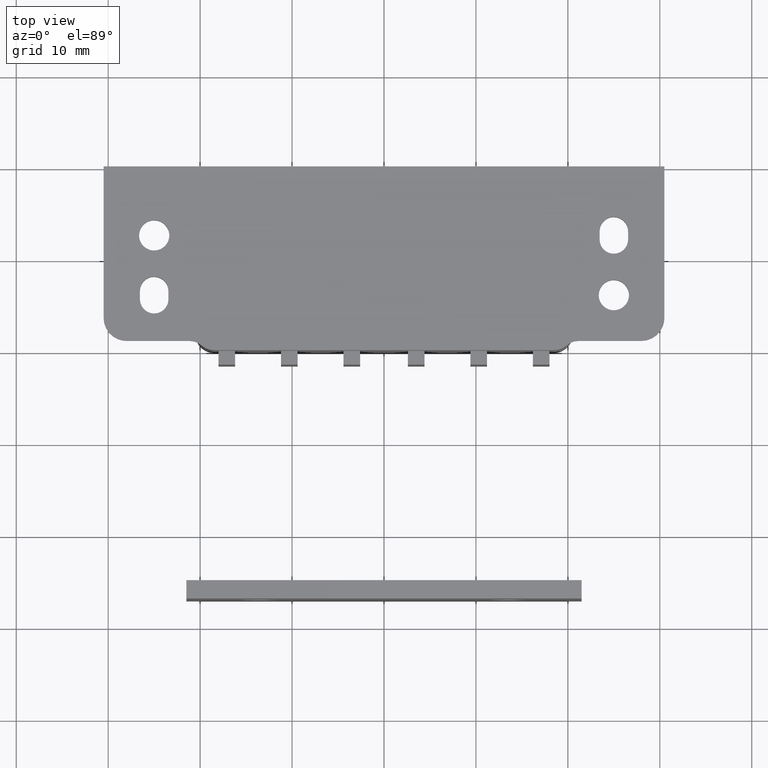
[diagram: clean part render]
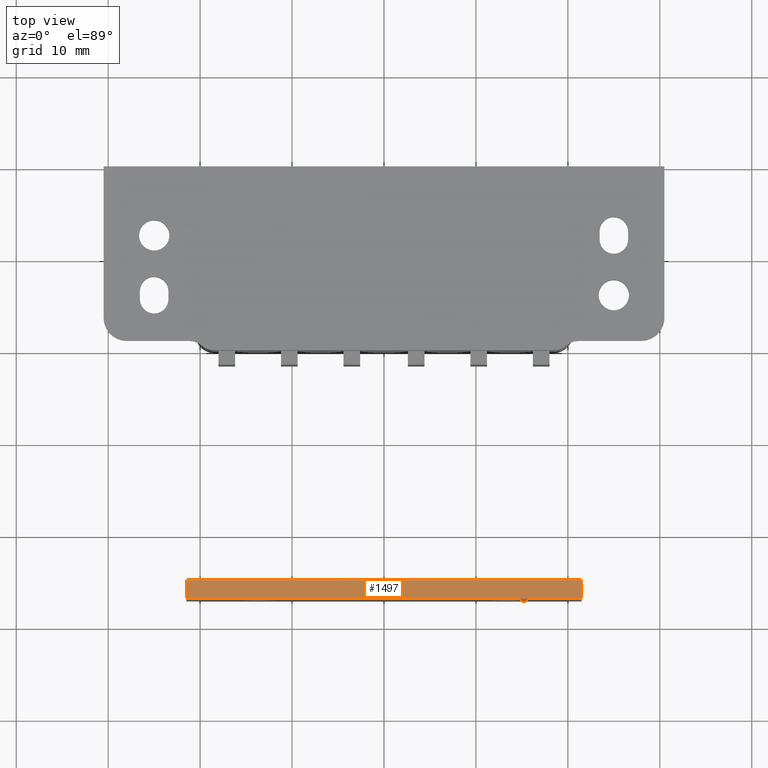
[diagram: same view with one face highlighted and labeled with its STEP entity id]
A machine part, top view. The second image highlights one B-rep face of the part: STEP entity #1497.
In plain terms, the highlighted face is a freeform B-spline surface patch.
Its self-contained STEP definition (entity closure, byte-faithful):
#1381=CARTESIAN_POINT('',(-21.500000000000000,-45.0,9.499999999980332));
#1382=VERTEX_POINT('',#1381);
#1388=CARTESIAN_POINT('',(21.499999999999751,-45.0,9.499999999980281));
#1389=VERTEX_POINT('',#1388);
#1390=CARTESIAN_POINT('',(-21.500000000000000,-45.0,9.499999999980332));
#1391=CARTESIAN_POINT('',(21.499999999999751,-45.0,9.499999999980281));
#1392=QUASI_UNIFORM_CURVE('',1,(#1390,#1391),.UNSPECIFIED.,.F.,.U.);
#1393=EDGE_CURVE('',#1382,#1389,#1392,.T.);
#1460=CARTESIAN_POINT('',(21.499999999999751,-47.000000000000448,9.499999999980281));
#1461=VERTEX_POINT('',#1460);
#1462=CARTESIAN_POINT('',(21.499999999999751,-47.000000000000448,9.499999999980281));
#1463=CARTESIAN_POINT('',(21.499999999999751,-45.0,9.499999999980281));
#1464=QUASI_UNIFORM_CURVE('',1,(#1462,#1463),.UNSPECIFIED.,.F.,.U.);
#1465=EDGE_CURVE('',#1461,#1389,#1464,.T.);
#1476=CARTESIAN_POINT('',(-23.647849916657641,-47.099899996124080,9.499999999980332));
#1477=CARTESIAN_POINT('',(23.647851070007270,-47.099899996124080,9.499999999980332));
#1478=CARTESIAN_POINT('',(-23.647849916657648,-44.900099950232189,9.499999999980332));
#1479=CARTESIAN_POINT('',(23.647851070007270,-44.900099950232189,9.499999999980332));
#1480=B_SPLINE_SURFACE_WITH_KNOTS('',1,1,((#1476,#1478),(#1477,#1479)),.UNSPECIFIED.,.F.,.F.,.U.,(2,2),(2,2),(0.0,47.295700986664919),(0.0,2.199800045891894),.UNSPECIFIED.);
#1481=ORIENTED_EDGE('',*,*,#1393,.F.);
#1482=CARTESIAN_POINT('',(-21.500000000000000,-47.000000000000448,9.499999999980332));
#1483=VERTEX_POINT('',#1482);
#1484=CARTESIAN_POINT('',(-21.500000000000000,-47.000000000000448,9.499999999980332));
#1485=CARTESIAN_POINT('',(-21.500000000000000,-45.0,9.499999999980332));
#1486=QUASI_UNIFORM_CURVE('',1,(#1484,#1485),.UNSPECIFIED.,.F.,.U.);
#1487=EDGE_CURVE('',#1483,#1382,#1486,.T.);
#1488=ORIENTED_EDGE('',*,*,#1487,.F.);
#1489=CARTESIAN_POINT('',(-21.500000000000000,-47.000000000000448,9.499999999980332));
#1490=CARTESIAN_POINT('',(21.499999999999751,-47.000000000000448,9.499999999980281));
#1491=QUASI_UNIFORM_CURVE('',1,(#1489,#1490),.UNSPECIFIED.,.F.,.U.);
#1492=EDGE_CURVE('',#1483,#1461,#1491,.T.);
#1493=ORIENTED_EDGE('',*,*,#1492,.T.);
#1494=ORIENTED_EDGE('',*,*,#1465,.T.);
#1495=EDGE_LOOP('',(#1481,#1488,#1493,#1494));
#1496=FACE_OUTER_BOUND('',#1495,.T.);
#1497=ADVANCED_FACE('',(#1496),#1480,.T.);